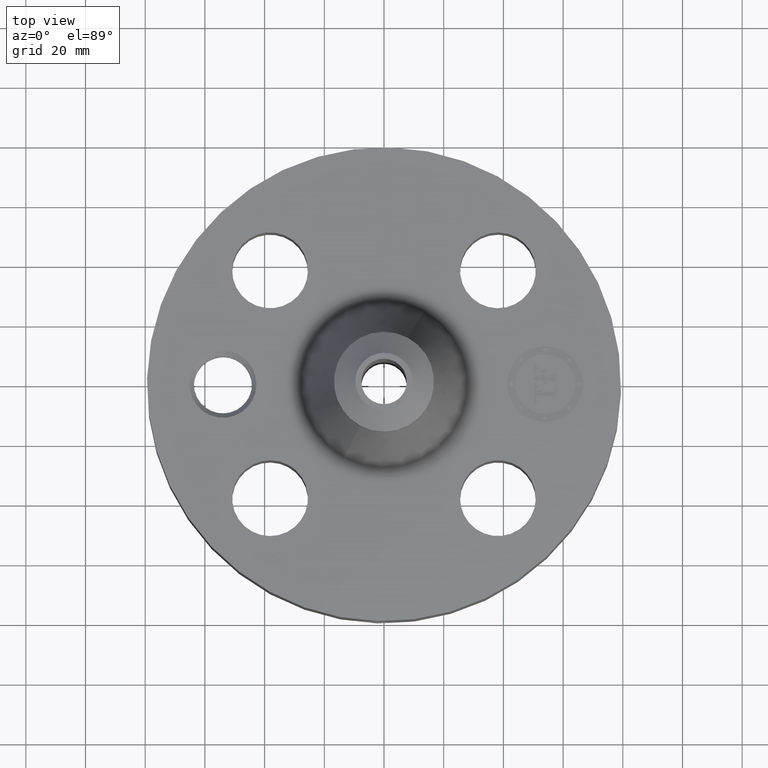
[diagram: clean part render]
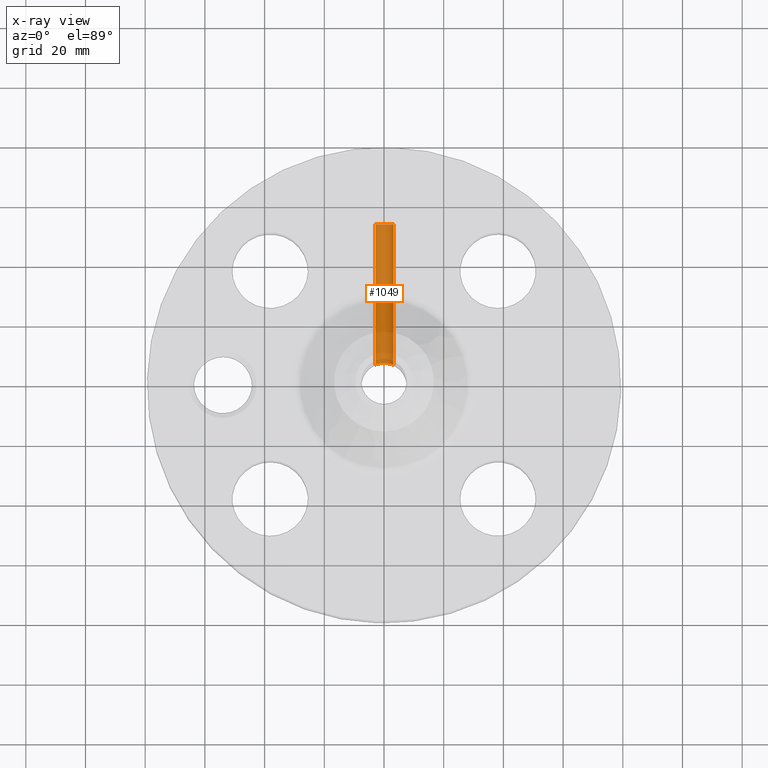
[diagram: x-ray — body ghosted, one internal face saturated and labeled with its STEP entity id]
A machine part, top view, then the same camera in x-ray: the body is ghosted and one INTERNAL B-rep face — a face not visible from any outside direction — is saturated and labeled: STEP entity #1049.
In plain terms, the highlighted cylindrical surface (edge-blend (fillet) strip) has radius 3.175 mm, axis along (-0, -1, 0).
Its self-contained STEP definition (entity closure, byte-faithful):
#1010=AXIS2_PLACEMENT_3D('Cylinder Axis2P3D',#1007,#1008,#1009) ;
#1040=AXIS2_PLACEMENT_3D('Circle Axis2P3D',#1038,#1039,$) ;
#553=CARTESIAN_POINT('Control Point',(-0.109697820237,0.27868734854,0.690071807677)) ;
#554=CARTESIAN_POINT('Control Point',(-0.0997426920821,0.282605918451,0.671849067822)) ;
#555=CARTESIAN_POINT('Control Point',(-0.0860889660567,0.287466954597,0.655849602408)) ;
#556=CARTESIAN_POINT('Control Point',(-0.0693864207847,0.292296009423,0.642854072798)) ;
#557=CARTESIAN_POINT('Control Point',(-0.0296008179106,0.299925034787,0.623682700526)) ;
#558=CARTESIAN_POINT('Control Point',(0.0153575584245,0.300496051531,0.622757103589)) ;
#559=CARTESIAN_POINT('Control Point',(0.0382924287881,0.298230729722,0.627818238949)) ;
#560=CARTESIAN_POINT('Control Point',(0.0760212985245,0.290868229207,0.645631071313)) ;
#561=CARTESIAN_POINT('Control Point',(0.103381825791,0.281494253502,0.676179530321)) ;
#562=CARTESIAN_POINT('Control Point',(0.113190038741,0.27744286343,0.692183829365)) ;
#563=CARTESIAN_POINT('Control Point',(0.125890866499,0.271826149207,0.725892633362)) ;
#564=CARTESIAN_POINT('Control Point',(0.126168205792,0.27160166412,0.762213438216)) ;
#565=CARTESIAN_POINT('Control Point',(0.1232846964,0.273009152136,0.779275122499)) ;
#566=CARTESIAN_POINT('Control Point',(0.117680296236,0.275545260383,0.795316368023)) ;
#567=CARTESIAN_POINT('Control Point',(0.109697820237,0.27868734854,0.809928192329)) ;
#568=CARTESIAN_POINT('Vertex',(-0.109697820237,0.27868734854,0.690071807677)) ;
#570=CARTESIAN_POINT('Vertex',(0.109697820237,0.27868734854,0.809928192329)) ;
#1007=CARTESIAN_POINT('Axis2P3D Location',(-8.81257210498E-015,3.12106299214,0.750000000003)) ;
#1012=CARTESIAN_POINT('Line Origine',(-0.109697820237,1.20018392157,0.690071807677)) ;
#1016=CARTESIAN_POINT('Vertex',(-0.109697820237,2.12821662098,0.690071807677)) ;
#1023=CARTESIAN_POINT('Vertex',(0.109697820237,2.12821662098,0.809928192329)) ;
#1026=CARTESIAN_POINT('Line Origine',(0.109697820237,1.20018392157,0.809928192329)) ;
#1038=CARTESIAN_POINT('Axis2P3D Location',(-8.99495502455E-015,2.12821662098,0.750000000003)) ;
#1008=DIRECTION('Axis2P3D Direction',(-7.2321661367E-018,-0.0393700787402,0.)) ;
#1009=DIRECTION('Axis2P3D XDirection',(-0.0345504945627,6.34682288627E-018,-0.0188750212048)) ;
#1013=DIRECTION('Vector Direction',(-7.41719179065E-018,-0.0393700787402,0.)) ;
#1027=DIRECTION('Vector Direction',(-7.41719179065E-018,-0.0393700787402,0.)) ;
#1039=DIRECTION('Axis2P3D Direction',(-7.2321661367E-018,-0.0393700787402,0.)) ;
#1014=VECTOR('Line Direction',#1013,0.0393700787402) ;
#1028=VECTOR('Line Direction',#1027,0.0393700787402) ;
#1044=ORIENTED_EDGE('',*,*,#572,.T.) ;
#1045=ORIENTED_EDGE('',*,*,#1030,.T.) ;
#1046=ORIENTED_EDGE('',*,*,#1042,.F.) ;
#1047=ORIENTED_EDGE('',*,*,#1018,.F.) ;
#1049=ADVANCED_FACE('PartBody',(#1048),#1011,.F.) ;
#552=B_SPLINE_CURVE_WITH_KNOTS('',5,(#553,#554,#555,#556,#557,#558,#559,#560,#561,#562,#563,#564,#565,#566,#567),.UNSPECIFIED.,.F.,.U.,(6,3,3,3,6),(0.,3.79527346756,7.85564849709,11.2295028748,14.2727263165),.UNSPECIFIED.) ;
#1041=CIRCLE('generated circle',#1040,0.125000000001) ;
#1011=CYLINDRICAL_SURFACE('generated cylinder',#1010,0.125000000001) ;
#572=EDGE_CURVE('',#569,#571,#552,.T.) ;
#1018=EDGE_CURVE('',#569,#1017,#1015,.F.) ;
#1030=EDGE_CURVE('',#571,#1024,#1029,.F.) ;
#1042=EDGE_CURVE('',#1017,#1024,#1041,.T.) ;
#1043=EDGE_LOOP('',(#1044,#1045,#1046,#1047)) ;
#1048=FACE_OUTER_BOUND('',#1043,.T.) ;
#1015=LINE('Line',#1012,#1014) ;
#1029=LINE('Line',#1026,#1028) ;
#569=VERTEX_POINT('',#568) ;
#571=VERTEX_POINT('',#570) ;
#1017=VERTEX_POINT('',#1016) ;
#1024=VERTEX_POINT('',#1023) ;